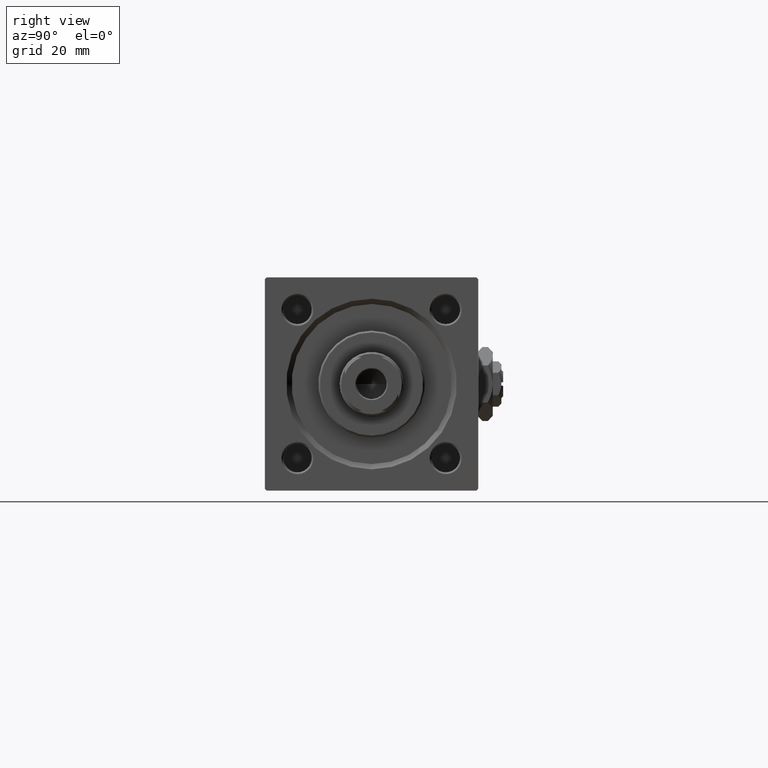
[diagram: clean part render]
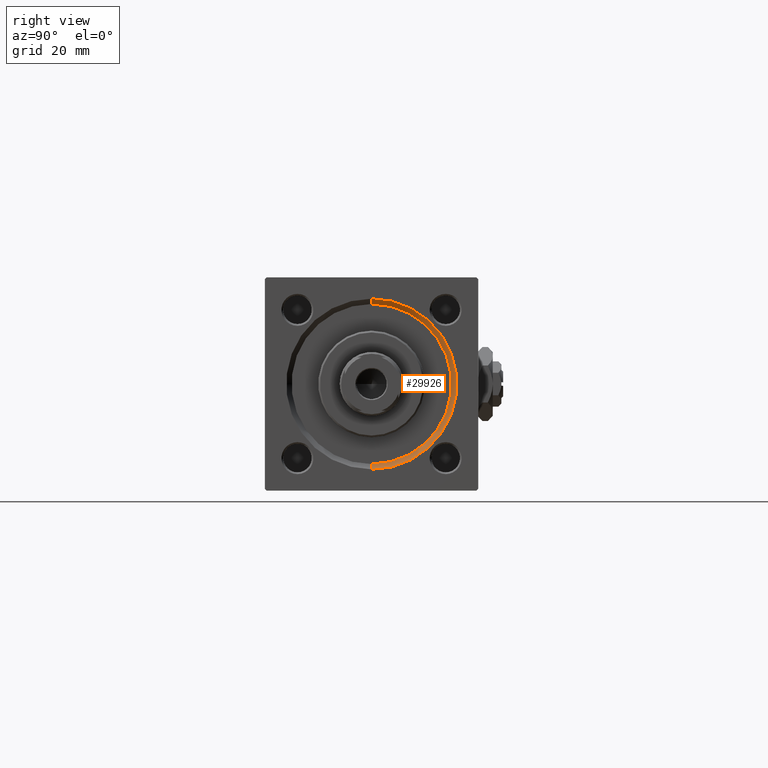
[diagram: same view with one face highlighted and labeled with its STEP entity id]
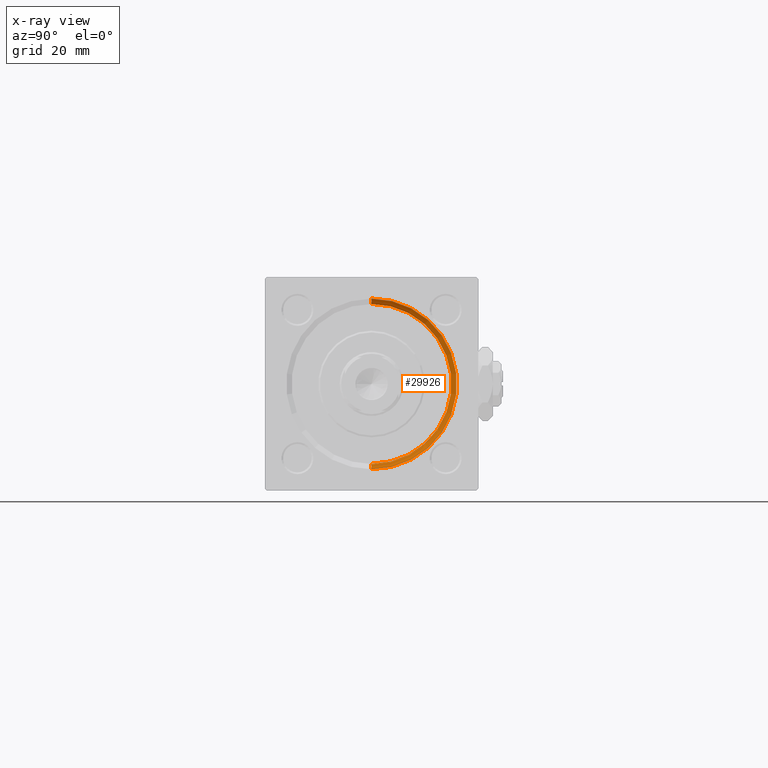
[diagram: x-ray of the same camera — body ghosted, the highlighted face saturated]
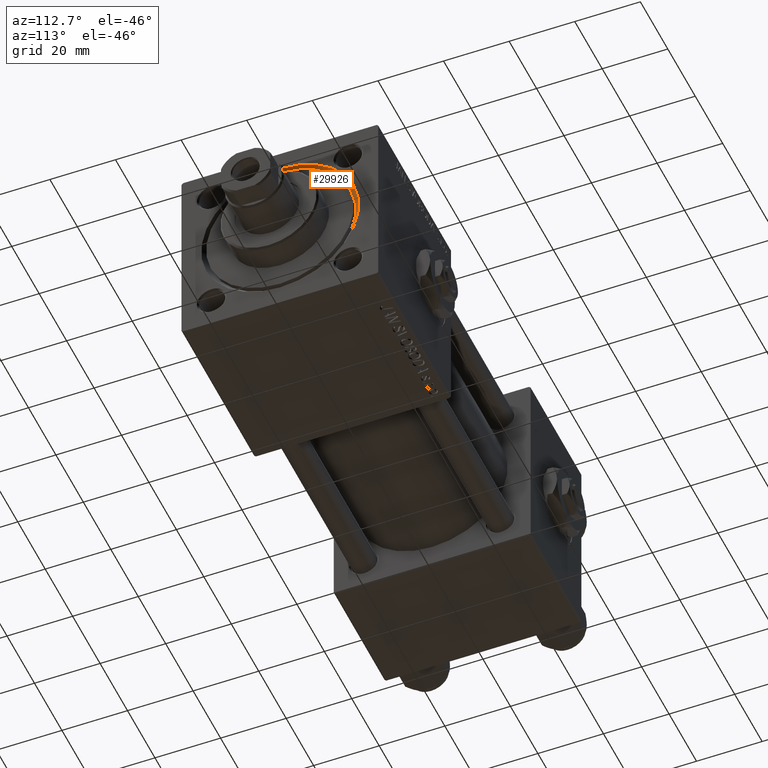
[diagram: same view with one face highlighted and labeled with its STEP entity id]
A machine part, right view. The second image highlights one B-rep face of the part: STEP entity #29926.
The next image is the same camera in x-ray: the body ghosted, the highlighted face saturated — about 0% of this face is hidden behind the body in this view.
A second angle (auxiliary view) of the same face is appended — the face is thin or edge-on in the first view.
In plain terms, the highlighted conical surface has half-angle 45 deg.
Its self-contained STEP definition (entity closure, byte-faithful):
#87 = DIRECTION ( 'NONE',  ( 1.000000000000000000, 0.000000000000000000, 0.000000000000000000 ) ) ;
#1096 = EDGE_CURVE ( 'NONE', #39965, #14353, #9650, .T. ) ;
#4586 = CARTESIAN_POINT ( 'NONE',  ( 146.4999999999999432, 0.000000000000000000, 0.000000000000000000 ) ) ;
#4859 = FACE_OUTER_BOUND ( 'NONE', #17399, .T. ) ;
#5414 = VECTOR ( 'NONE', #34991, 1000.000000000000000 ) ;
#5799 = DIRECTION ( 'NONE',  ( 1.000000000000000000, 0.000000000000000000, 0.000000000000000000 ) ) ;
#6750 = CARTESIAN_POINT ( 'NONE',  ( 148.0000000000000000, 0.000000000000000000, 0.000000000000000000 ) ) ;
#7537 = CARTESIAN_POINT ( 'NONE',  ( 148.0000000000000000, 0.000000000000000000, -24.00000000000003908 ) ) ;
#9292 = EDGE_CURVE ( 'NONE', #14353, #11124, #45372, .T. ) ;
#9650 = LINE ( 'NONE', #14145, #5414 ) ;
#10729 = EDGE_CURVE ( 'NONE', #33749, #39965, #26736, .T. ) ;
#11124 = VERTEX_POINT ( 'NONE', #7537 ) ;
#11465 = AXIS2_PLACEMENT_3D ( 'NONE', #6750, #46142, #30032 ) ;
#13735 = DIRECTION ( 'NONE',  ( 0.000000000000000000, 0.000000000000000000, 1.000000000000000000 ) ) ;
#14145 = CARTESIAN_POINT ( 'NONE',  ( 146.4999999999999432, 2.755455298081545172E-15, 22.50000000000000355 ) ) ;
#14353 = VERTEX_POINT ( 'NONE', #41444 ) ;
#17399 = EDGE_LOOP ( 'NONE', ( #51001, #20315, #27386, #25909 ) ) ;
#20315 = ORIENTED_EDGE ( 'NONE', *, *, #10729, .F. ) ;
#20799 = AXIS2_PLACEMENT_3D ( 'NONE', #45707, #5799, #13735 ) ;
#24201 = DIRECTION ( 'NONE',  ( 0.7071067811865524577, 0.000000000000000000, -0.7071067811865426878 ) ) ;
#25909 = ORIENTED_EDGE ( 'NONE', *, *, #9292, .F. ) ;
#26736 = CIRCLE ( 'NONE', #20799, 22.50000000000000355 ) ;
#27386 = ORIENTED_EDGE ( 'NONE', *, *, #36700, .T. ) ;
#29926 = ADVANCED_FACE ( 'NONE', ( #4859 ), #48524, .F. ) ;
#30032 = DIRECTION ( 'NONE',  ( 0.000000000000000000, 0.000000000000000000, 1.000000000000000000 ) ) ;
#33749 = VERTEX_POINT ( 'NONE', #44230 ) ;
#34587 = CARTESIAN_POINT ( 'NONE',  ( 146.4999999999999432, 2.755455298081545172E-15, 22.50000000000000355 ) ) ;
#34991 = DIRECTION ( 'NONE',  ( 0.7071067811865524577, 8.659560562354874926E-17, 0.7071067811865426878 ) ) ;
#35840 = AXIS2_PLACEMENT_3D ( 'NONE', #4586, #87, #45299 ) ;
#36700 = EDGE_CURVE ( 'NONE', #33749, #11124, #40829, .T. ) ;
#37395 = CARTESIAN_POINT ( 'NONE',  ( 146.4999999999999432, 0.000000000000000000, -22.50000000000000355 ) ) ;
#39965 = VERTEX_POINT ( 'NONE', #34587 ) ;
#40829 = LINE ( 'NONE', #37395, #41048 ) ;
#41048 = VECTOR ( 'NONE', #24201, 1000.000000000000000 ) ;
#41444 = CARTESIAN_POINT ( 'NONE',  ( 148.0000000000000000, 2.939152317953652628E-15, 24.00000000000003908 ) ) ;
#44230 = CARTESIAN_POINT ( 'NONE',  ( 146.4999999999999432, 0.000000000000000000, -22.50000000000000355 ) ) ;
#45299 = DIRECTION ( 'NONE',  ( 0.000000000000000000, 0.000000000000000000, -1.000000000000000000 ) ) ;
#45372 = CIRCLE ( 'NONE', #11465, 24.00000000000003908 ) ;
#45707 = CARTESIAN_POINT ( 'NONE',  ( 146.4999999999999432, 0.000000000000000000, 0.000000000000000000 ) ) ;
#46142 = DIRECTION ( 'NONE',  ( -1.000000000000000000, 0.000000000000000000, -0.000000000000000000 ) ) ;
#48524 = CONICAL_SURFACE ( 'NONE', #35840, 22.50000000000000355, 0.7853981633974415066 ) ;
#51001 = ORIENTED_EDGE ( 'NONE', *, *, #1096, .F. ) ;